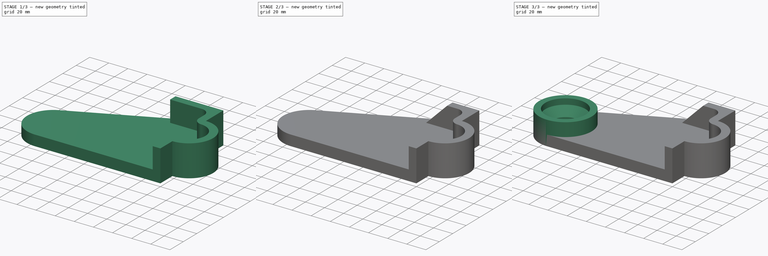
[diagram: build sequence overview — one tinted view per stage of 3, left to right]
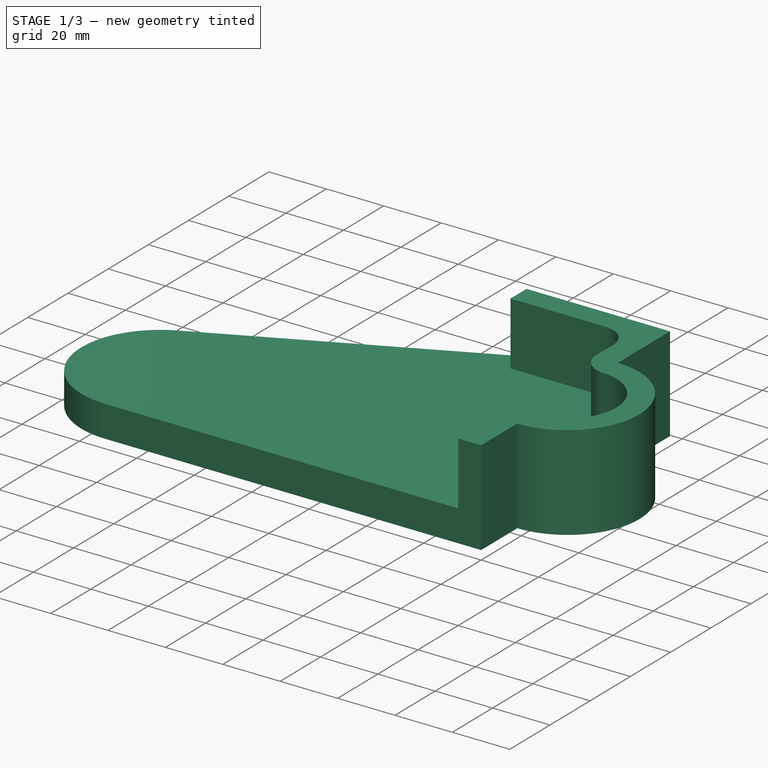
[diagram: stage 1 of 3 — iso view after this stage's code; geometry added in this stage tinted green]
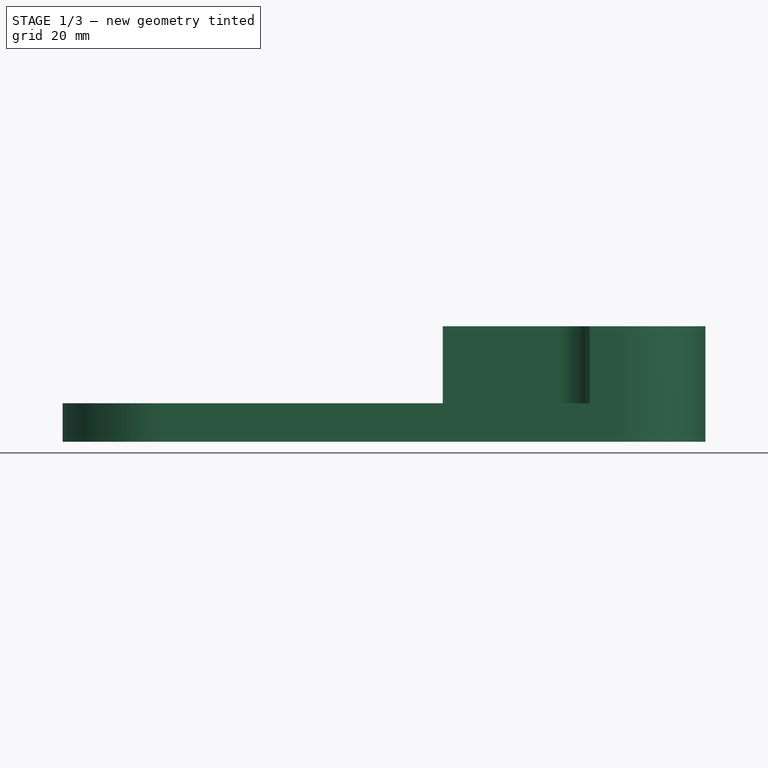
[diagram: stage 1 of 3 — front view after this stage's code; geometry added in this stage tinted green]
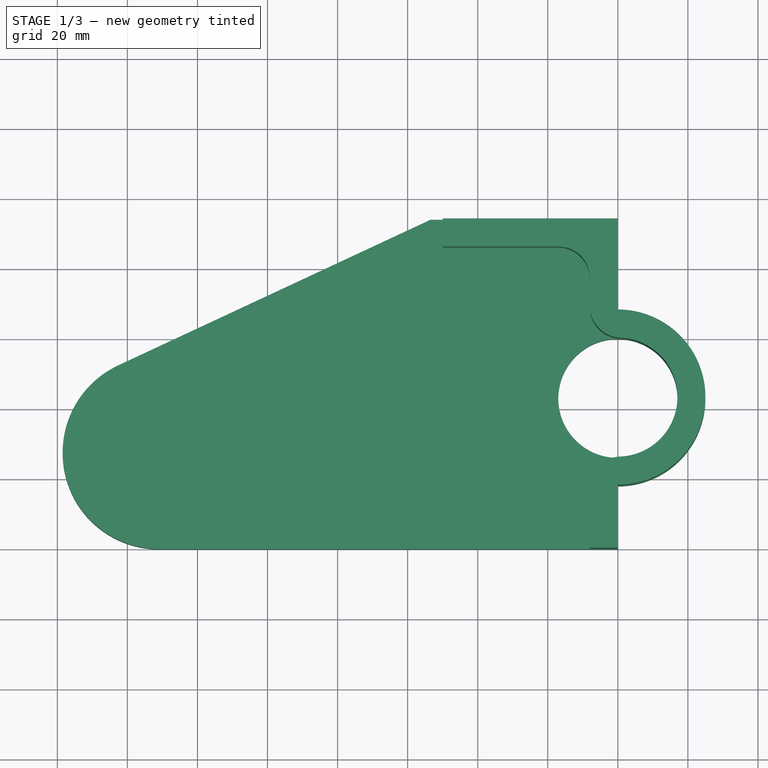
[diagram: stage 1 of 3 — top view after this stage's code; geometry added in this stage tinted green]
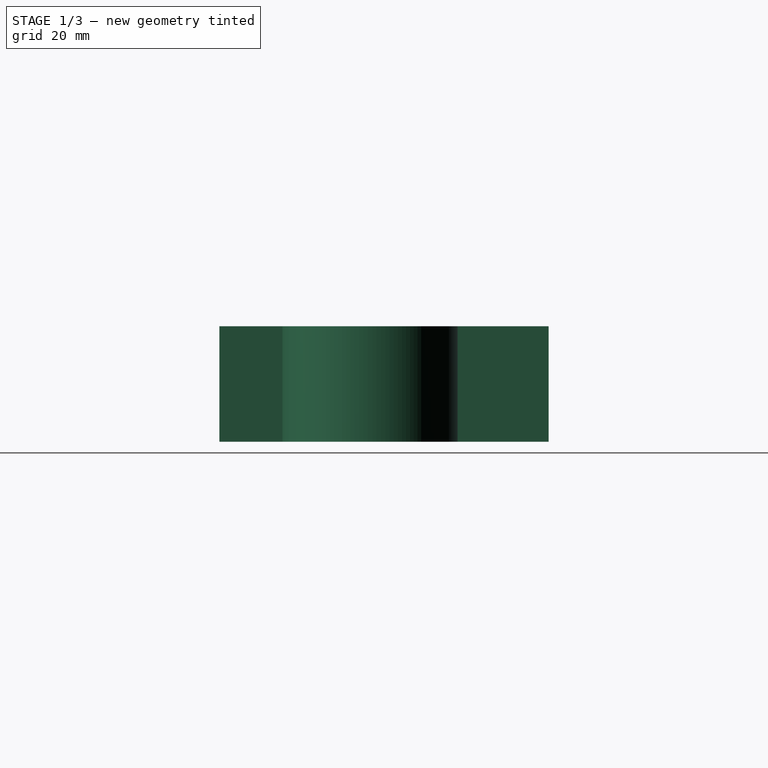
[diagram: stage 1 of 3 — right view after this stage's code; geometry added in this stage tinted green]
FCSTD DOCUMENT  (FreeCAD 1.1R42180 (Git))
Label: 24WC-05-Right_Arm_Mount
License: Creative Commons Attribution-NonCommercial-ShareAlike 4.0
LicenseURL: https://creativecommons.org/licenses/by-nc-sa/4.0/
objects: Sketcher::SketchObject×3, PartDesign::Pad×3, App::Point×1, PartDesign::Chamfer×1, PartDesign::Hole×1, PartDesign::Body×1, App::TextDocument×1
note: 22 computed .brp shape members not serialized (recipe doc carries the construction recipe); baked Part::Feature solids carry a one-line shape summary decoded from their .brp

FEATURE [App::Point] Origin001  label="Origine"
  Role = Origin
FEATURE [Sketcher::SketchObject] Sketch
  ArcFitTolerance = 1e-06
  AttachmentSupport = -> [Origin]
  ExternalTypes = [0]
  FullyConstrained = true
  MakeInternals = false
  MapMode = 5
  expr: Constraints[7] = 55 / 2
  sketch-geometry (8):
    g0: LineSegment StartX=-131 StartY=0 StartZ=0 EndX=0 EndY=0 EndZ=0
    g1: LineSegment StartX=-9.2e-15 StartY=0 StartZ=0 EndX=-9.2e-15 EndY=18 EndZ=0
    g2: LineSegment StartX=-1.5e-15 StartY=94 StartZ=0 EndX=-53.4608 EndY=94 EndZ=0
    g3: LineSegment StartX=-53.4608 StartY=94 StartZ=0 EndX=-142.622 EndY=52.4235 EndZ=0
    g4: ArcOfCircle CenterX=-131 CenterY=27.5 CenterZ=0 NormalX=0 NormalY=0 NormalZ=1 AngleXU=0 Radius=27.5 StartAngle=2.00713 EndAngle=4.71239
    g5: ArcOfCircle CenterX=-9.2e-15 CenterY=43 CenterZ=0 NormalX=0 NormalY=0 NormalZ=1 AngleXU=0 Radius=25 StartAngle=4.71239 EndAngle=7.85398
    g6: Circle CenterX=-9.2e-15 CenterY=43 CenterZ=0 NormalX=0 NormalY=0 NormalZ=1 AngleXU=0 Radius=17
    g7: LineSegment StartX=-1.5e-15 StartY=68 StartZ=0 EndX=-1.5e-15 EndY=94 EndZ=0
  constraints (22):
    c: Horizontal(g0)
    c: Coincident(g0,g1)
    c: Coincident(g7,g2)
    c: Horizontal(g2)
    c: Coincident(g2,g3)
    c: Tangent(g3,g4) = -1.5708
    c: Tangent(g4,g0) = -1.5708
    c: Radius(g4) = 27.5
    c: DistanceX(g4,g0) = 131
    c: DistanceY(g1,g7) = 94
    c: Coincident(g-1,g0)
    c: Angle(g0,g3) = 0.436332
    c: Coincident(g6,g5)
    c: Vertical(g5,g0)
    c: Vertical(g7)
    c: Coincident(g7,g5)
    c: Vertical(g1)
    c: PointOnObject(g5,g1)
    c: Coincident(g5,g1)
    c: Diameter(g6) = 34
    c: Distance(g1,g6) = 8
    c: DistanceY(g-1,g5) = 43
FEATURE [PartDesign::Pad] Pad
  Direction = (0,0,1)
  Length = 11
  Length2 = 10
  Profile = -> Sketch
  ReferenceAxis = -> Sketch [N_Axis]
  Refine = true
  Suppressed = false
  Type = 0
FEATURE [Sketcher::SketchObject] Sketch001
  ArcFitTolerance = 1e-06
  AttachmentSupport = -> [Origin]
  ExternalGeometry = -> [Sketch]
  ExternalTypes = [0,0,0,0]
  FullyConstrained = true
  MakeInternals = false
  MapMode = 5
  sketch-geometry (14):
    g0: LineSegment StartX=-50 StartY=94 StartZ=0 EndX=0 EndY=94 EndZ=0
    g1: LineSegment StartX=0 StartY=94 StartZ=0 EndX=-1.5e-15 EndY=68 EndZ=0
    g2: LineSegment StartX=0 StartY=0 StartZ=0 EndX=-8 EndY=0 EndZ=0
    g3: LineSegment StartX=-8 StartY=0 StartZ=0 EndX=-8 EndY=17.0192 EndZ=0
    g4: ArcOfCircle CenterX=-9.2e-15 CenterY=43 CenterZ=0 NormalX=0 NormalY=0 NormalZ=1 AngleXU=0 Radius=17 StartAngle=4.75086 EndAngle=7.81551
    g5: LineSegment StartX=-8 StartY=68.9808 StartZ=0 EndX=-8 EndY=77 EndZ=0
    g6: LineSegment StartX=-17 StartY=86 StartZ=0 EndX=-50 EndY=86 EndZ=0
    g7: LineSegment StartX=-50 StartY=86 StartZ=0 EndX=-50 EndY=94 EndZ=0
    g8: ArcOfCircle CenterX=-9.2e-15 CenterY=43 CenterZ=0 NormalX=0 NormalY=0 NormalZ=1 AngleXU=0 Radius=25 StartAngle=4.71239 EndAngle=7.85398
    g9: LineSegment StartX=0 StartY=0 StartZ=0 EndX=0 EndY=18 EndZ=0
    g10: ArcOfCircle CenterX=1 CenterY=68.9808 CenterZ=0 NormalX=0 NormalY=0 NormalZ=1 AngleXU=0 Radius=9 StartAngle=3.14159 EndAngle=4.67392
    g11: ArcOfCircle CenterX=1 CenterY=17.0192 CenterZ=0 NormalX=0 NormalY=0 NormalZ=1 AngleXU=0 Radius=9 StartAngle=1.60927 EndAngle=3.14159
    g12: ArcOfCircle CenterX=-17 CenterY=77 CenterZ=0 NormalX=0 NormalY=0 NormalZ=1 AngleXU=0 Radius=9 StartAngle=4.04e-14 EndAngle=1.5708
    g13: GeomPoint [constr] X=-8 Y=86 Z=0
  constraints (37):
    c: PointOnObject(g0,g-3)
    c: Coincident(g-1,g2)
    c: PointOnObject(g2,g-4)
    c: Coincident(g2,g3)
    c: Vertical(g3)
    c: Horizontal(g6)
    c: Coincident(g6,g7)
    c: Coincident(g7,g0)
    c: Vertical(g7)
    c: Vertical(g5)
    c: Distance(g7,g7) = 8
    c: DistanceX(g0,g0) = 50
    c: Coincident(g0,g1)
    c: Coincident(g0,g-3)
    c: Coincident(g4,g-6)
    c: Equal(g2,g7)
    c: Coincident(g8,g4)
    c: Coincident(g8,g-5)
    c: Vertical(g8,g-5)
    c: PointOnObject(g9,g-2)
    c: PointOnObject(g9,g-2)
    c: Horizontal(g9,g2)
    c: Horizontal(g8,g9)
    c: Radius(g10) = 9
    c: Vertical(g3,g5)
    c: Tangent(g10,g4) = 1.5708
    c: Tangent(g10,g5) = 1.5708
    c: Equal(g10,g11)
    c: Tangent(g4,g11) = 1.5708
    c: Tangent(g11,g3) = 1.5708
    c: PointOnObject(g4,g-6)
    c: Coincident(g1,g8)
    c: PointOnObject(g13,g5)
    c: PointOnObject(g13,g6)
    c: Tangent(g5,g12) = -1.5708
    c: Tangent(g6,g12) = -1.5708
    c: Equal(g10,g12)
FEATURE [PartDesign::Pad] Pad001
  BaseFeature = -> Pad
  Direction = (0,0,1)
  Length = 33
  Length2 = 10
  Profile = -> Sketch001
  ReferenceAxis = -> Sketch001 [N_Axis]
  Refine = true
  Suppressed = false
  Type = 0
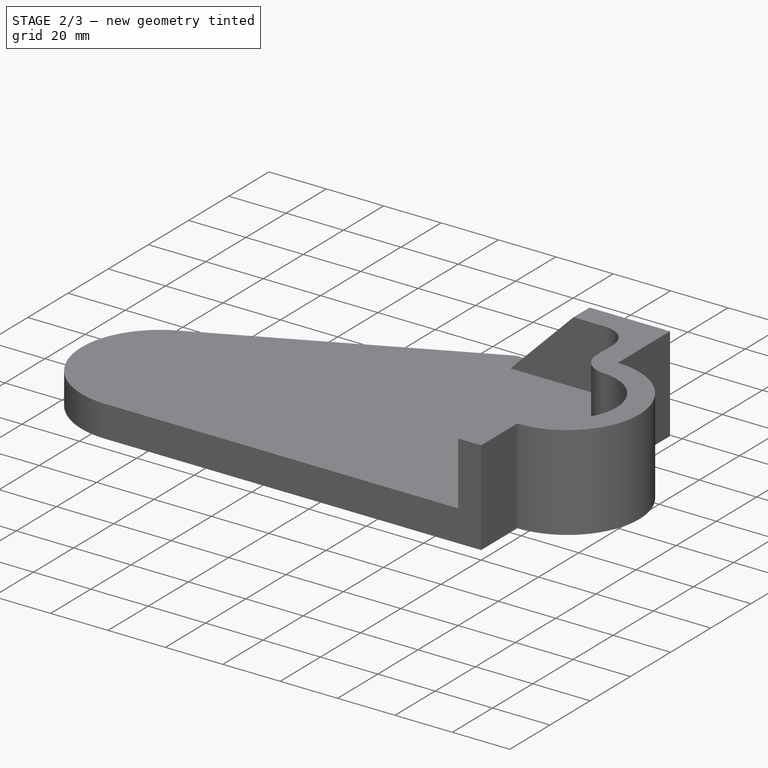
[diagram: stage 2 of 3 — iso view after this stage's code; geometry added in this stage tinted green]
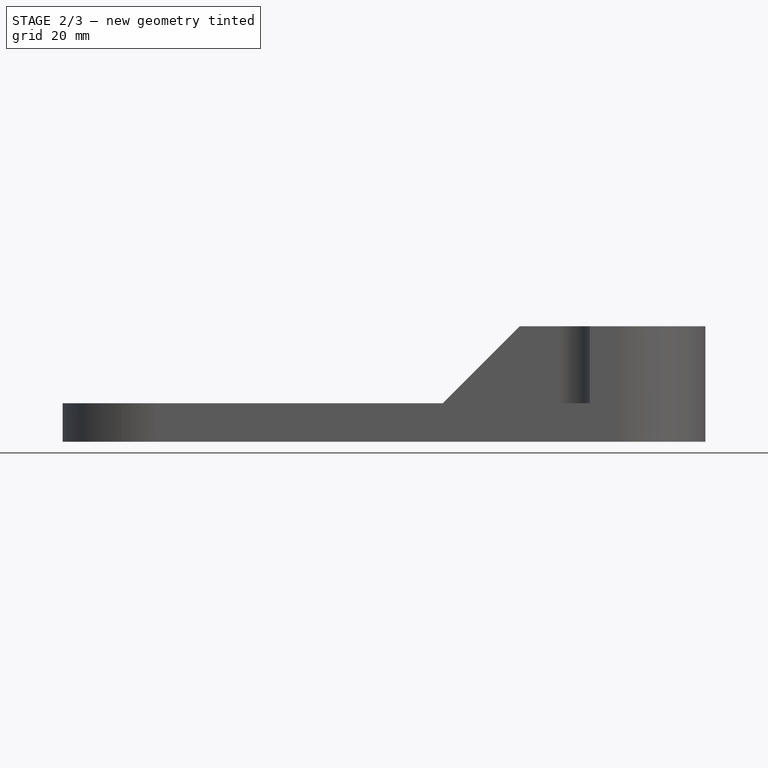
[diagram: stage 2 of 3 — front view after this stage's code; geometry added in this stage tinted green]
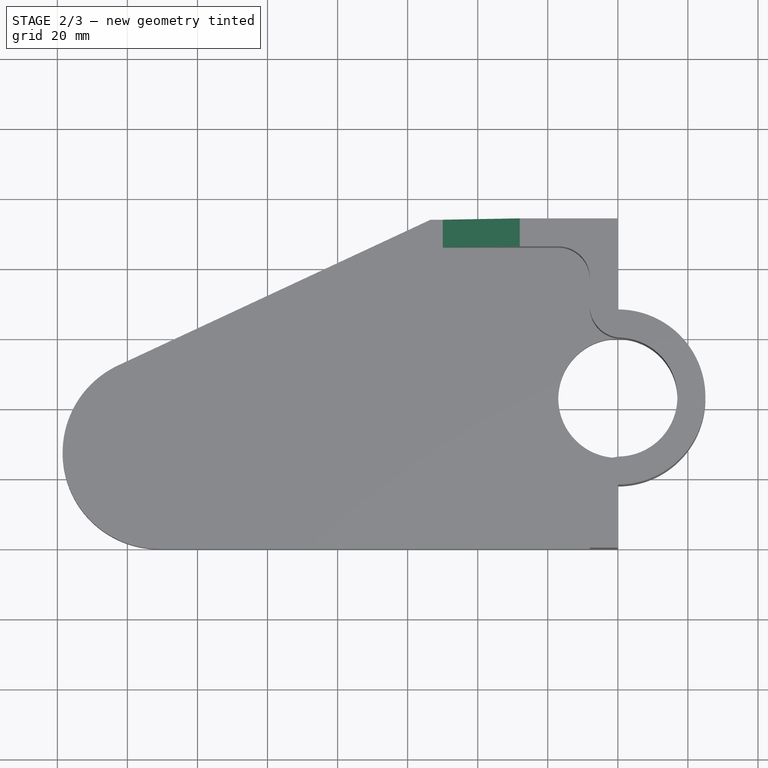
[diagram: stage 2 of 3 — top view after this stage's code; geometry added in this stage tinted green]
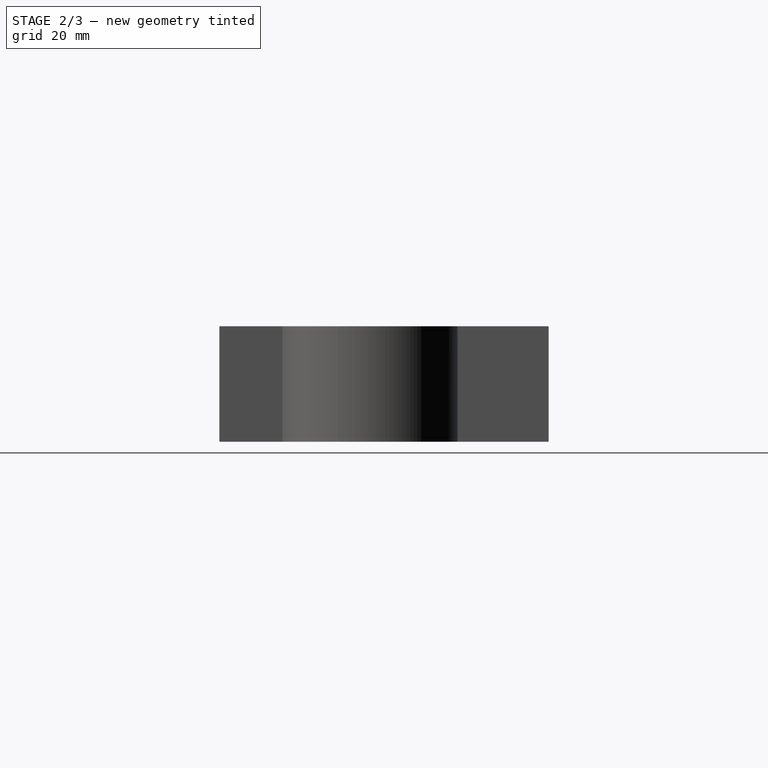
[diagram: stage 2 of 3 — right view after this stage's code; geometry added in this stage tinted green]
FEATURE [PartDesign::Chamfer] Chamfer
  Angle = 45
  Base = -> Pad001 [Edge19]
  BaseFeature = -> Pad001
  ChamferType = 0
  FlipDirection = false
  Refine = true
  Size = 21.99
  Size2 = 1
  SupportTransform = false
  Suppressed = false
  UseAllEdges = false
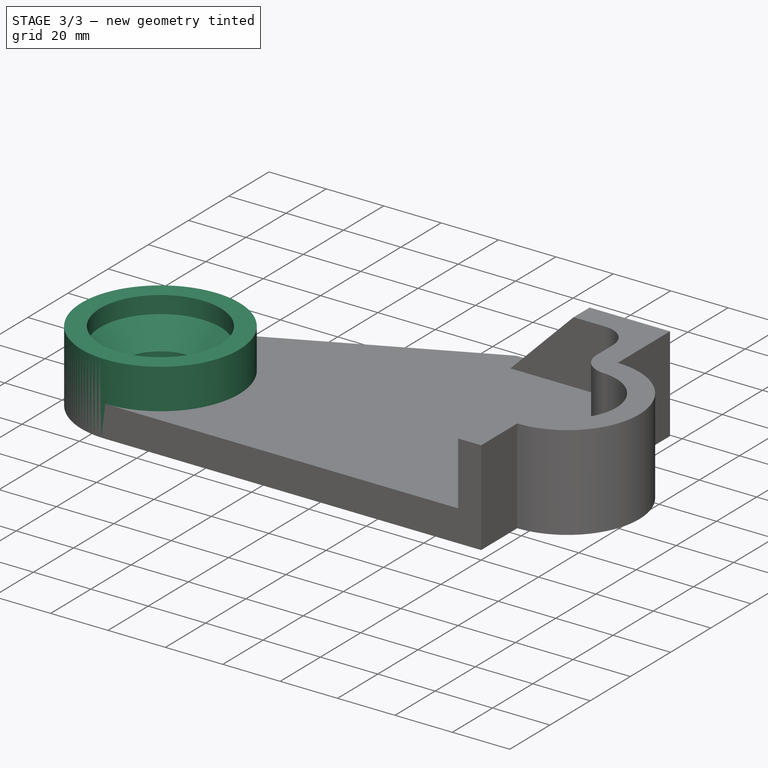
[diagram: stage 3 of 3 — iso view after this stage's code; geometry added in this stage tinted green]
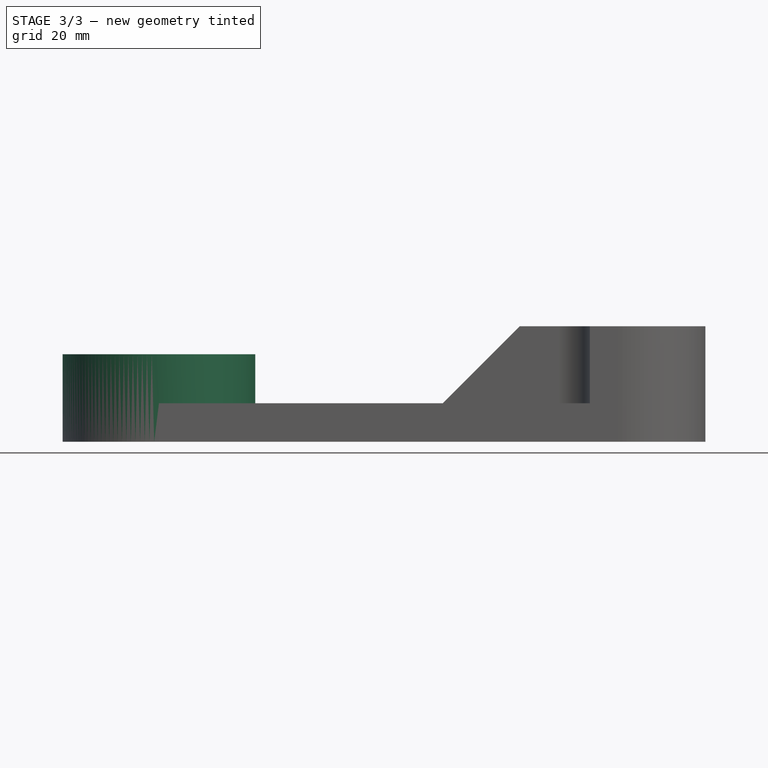
[diagram: stage 3 of 3 — front view after this stage's code; geometry added in this stage tinted green]
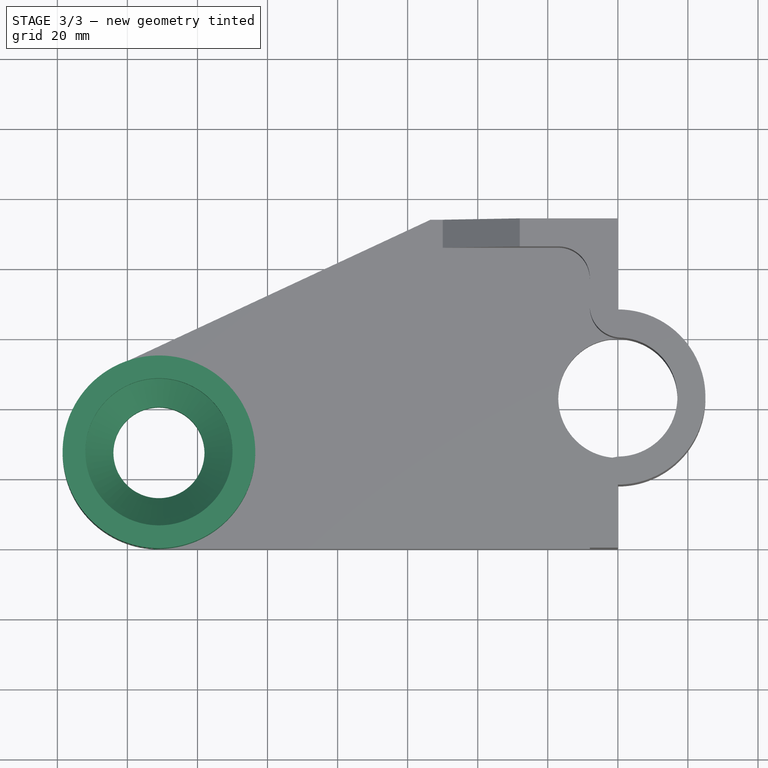
[diagram: stage 3 of 3 — top view after this stage's code; geometry added in this stage tinted green]
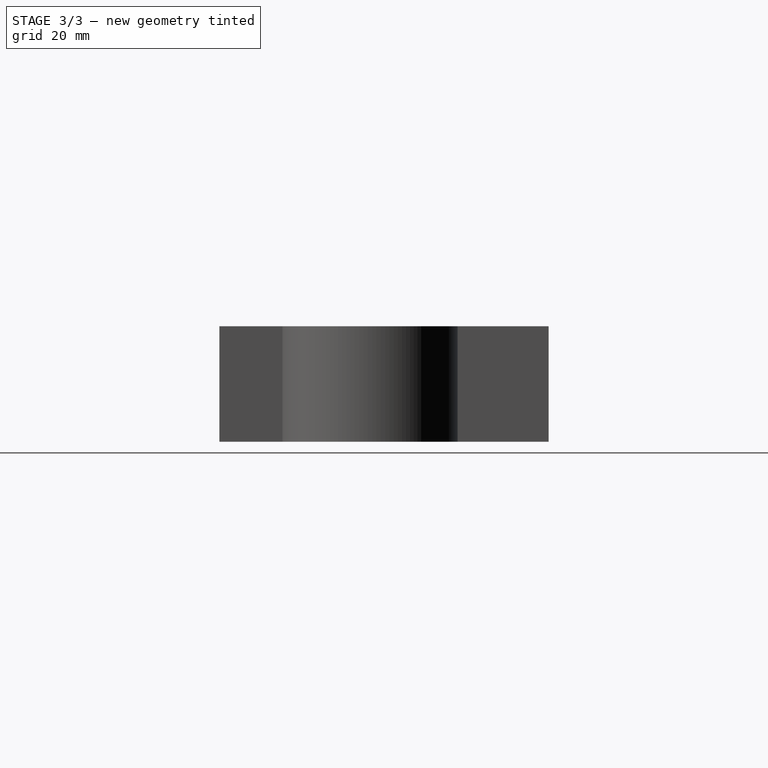
[diagram: stage 3 of 3 — right view after this stage's code; geometry added in this stage tinted green]
FEATURE [Sketcher::SketchObject] Sketch002
  ArcFitTolerance = 1e-06
  AttachmentSupport = -> [Origin]
  ExternalGeometry = -> [Sketch]
  ExternalTypes = [0,0]
  FullyConstrained = true
  MakeInternals = false
  MapMode = 5
  sketch-geometry (1):
    g0: Circle CenterX=-131 CenterY=27.5 CenterZ=0 NormalX=0 NormalY=0 NormalZ=1 AngleXU=0 Radius=27.5
  constraints (2):
    c: PointOnObject(g-3,g0)
    c: Coincident(g-3,g0)
FEATURE [PartDesign::Pad] Pad002
  BaseFeature = -> Chamfer
  Direction = (0,0,1)
  Length = 25
  Length2 = 10
  Profile = -> Sketch002
  ReferenceAxis = -> Sketch002 [N_Axis]
  Refine = true
  Suppressed = false
  Type = 0
FEATURE [PartDesign::Hole] Hole
  BaseFeature = -> Pad002
  BaseProfileType = 7
  CustomThreadClearance = 0
  Depth = 421.743
  DepthType = 1
  Diameter = 26
  DrillForDepth = false
  DrillPoint = 0
  DrillPointAngle = 118
  HoleCutCountersinkAngle = 90
  HoleCutCustomValues = false
  HoleCutDepth = 6
  HoleCutDiameter = 42
  HoleCutType = 3
  ModelThread = false
  Profile = -> Pad002 [Face20]
  Refine = true
  Suppressed = false
  Tapered = false
  TaperedAngle = 90
  ThreadClass = 0
  ThreadDepth = 421.743
  ThreadDepthType = 0
  ThreadDiameter = 26
  ThreadDirection = 0
  ThreadFit = 0
  ThreadSize = 0
  ThreadType = 0
  Threaded = false
  UseCustomThreadClearance = false
FEATURE [PartDesign::Body] Body
  AllowCompound = true
  Group = -> [Sketch,Pad,Sketch001,Pad001,Chamfer,Sketch002,Pad002,Hole]
  Origin = -> Origin
  Tip = -> Hole
FEATURE [App::TextDocument] Text_document  label="README"
  Text = https://www.youtube.com/watch?v=COEFGYwpXOE\n\n2700 kg/m3\n\n0,4671 kg, Good!
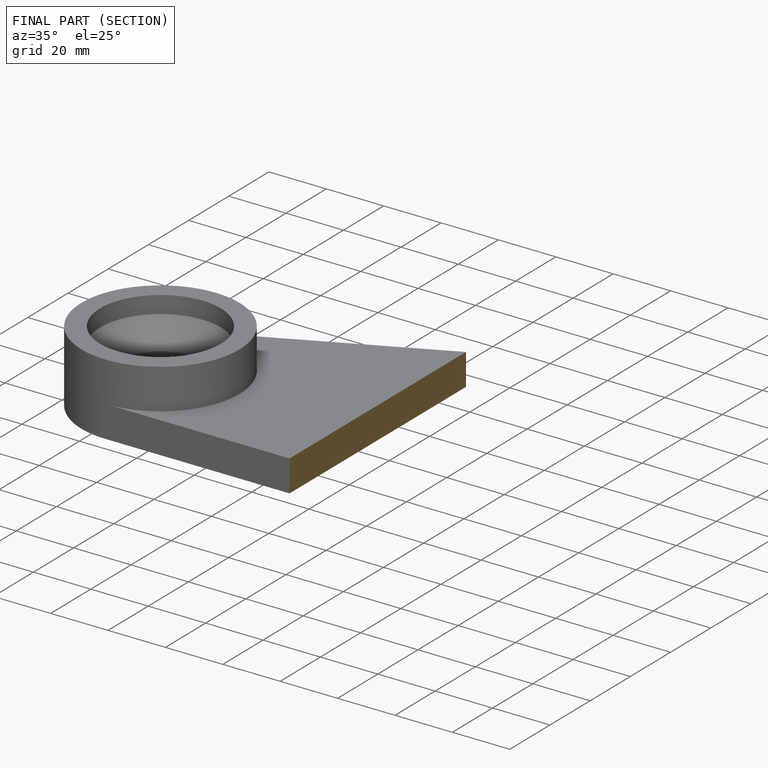
[diagram: finished part — half-section view (interior)]
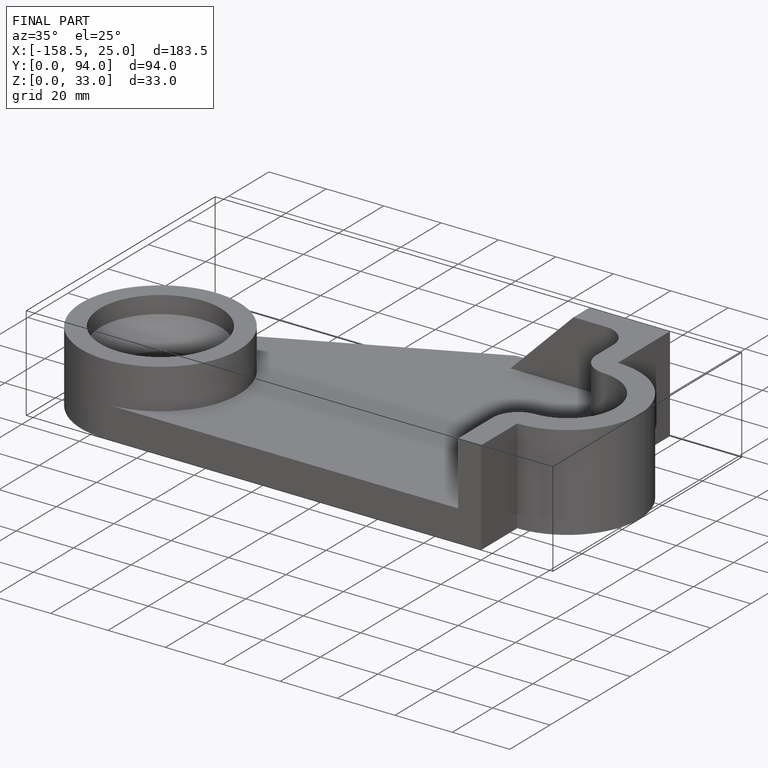
[diagram: finished part — iso view with bounding-box wireframe]
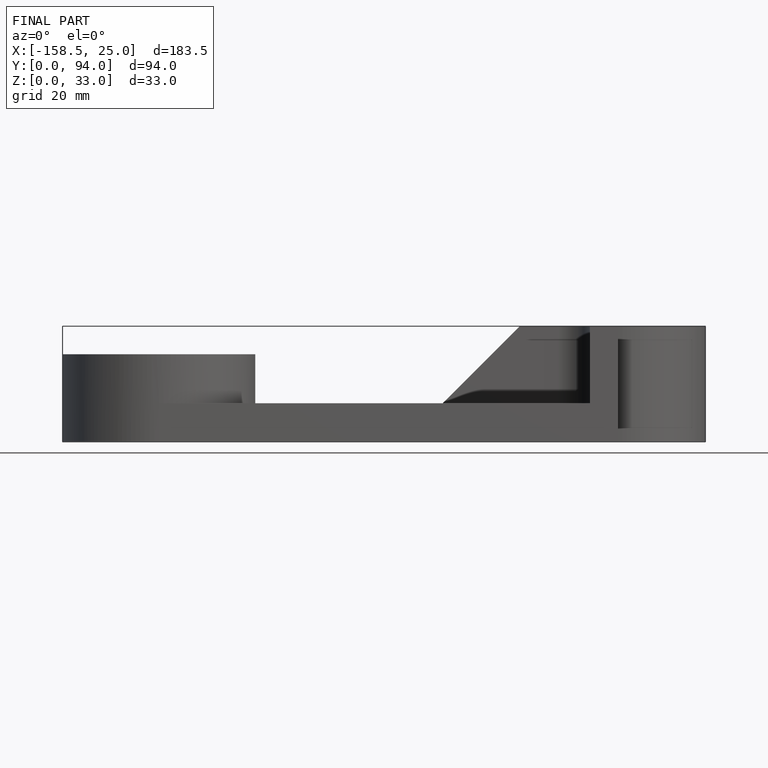
[diagram: finished part — front view with bounding-box wireframe]
